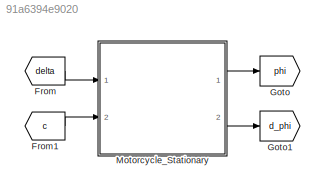
MODEL slx_91a6394e9020
KIND model
CONFIG AbsTol = auto
CONFIG EnableMultiTasking = off
CONFIG FixedStep = auto
CONFIG MaxStep = auto
CONFIG MinStep = auto
CONFIG RelTol = 1e-3
CONFIG SampleTimeConstraint = Unconstrained
CONFIG Solver = VariableStepAuto
CONFIG SolverName = VariableStepAuto
CONFIG StartTime = 0.0
CONFIG StopTime = 10.0
BLOCK [From] From
  GotoTag = delta
BLOCK [From] From1
  GotoTag = c
BLOCK [Goto] Goto
  GotoTag = phi
BLOCK [Goto] Goto1
  GotoTag = d_phi
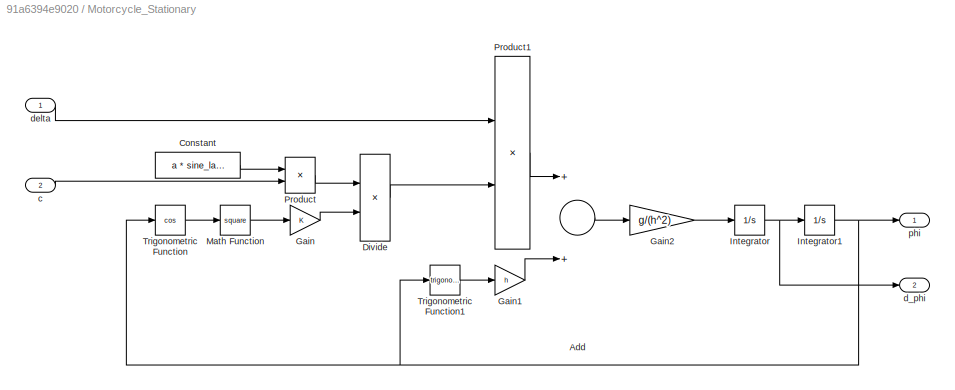
BLOCK [SubSystem] Motorcycle_Stationary
  Ports = [2, 2]
  RequestExecContextInheritance = off
BLOCK [Sum] Motorcycle_Stationary/Add
  InputSameDT = off
  OutDataTypeStr = Inherit: Inherit via internal rule
  Ports = [2, 1]
  SaturateOnIntegerOverflow = off
BLOCK [Constant] Motorcycle_Stationary/Constant
  Value = a * sine_lambda
BLOCK [Product] Motorcycle_Stationary/Divide
  InputSameDT = off
  Inputs = */
  OutDataTypeStr = Inherit: Inherit via internal rule
  Ports = [2, 1]
  RndMeth = Floor
  SaturateOnIntegerOverflow = off
BLOCK [Gain] Motorcycle_Stationary/Gain
  OutDataTypeStr = Inherit: Inherit via internal rule
  ParamDataTypeStr = Inherit: Inherit via internal rule
  SaturateOnIntegerOverflow = off
BLOCK [Gain] Motorcycle_Stationary/Gain1
  Gain = h
  OutDataTypeStr = Inherit: Inherit via internal rule
  ParamDataTypeStr = Inherit: Inherit via internal rule
  SaturateOnIntegerOverflow = off
BLOCK [Gain] Motorcycle_Stationary/Gain2
  Gain = g/(h^2)
  OutDataTypeStr = Inherit: Inherit via internal rule
  ParamDataTypeStr = Inherit: Inherit via internal rule
  SaturateOnIntegerOverflow = off
BLOCK [Integrator] Motorcycle_Stationary/Integrator
  Ports = [1, 1]
BLOCK [Integrator] Motorcycle_Stationary/Integrator1
  Ports = [1, 1]
BLOCK [Math] Motorcycle_Stationary/Math Function
  Operator = square
  Ports = [1, 1]
BLOCK [Product] Motorcycle_Stationary/Product
  InputSameDT = off
  OutDataTypeStr = Inherit: Inherit via internal rule
  Ports = [2, 1]
  RndMeth = Floor
  SaturateOnIntegerOverflow = off
BLOCK [Product] Motorcycle_Stationary/Product1
  InputSameDT = off
  OutDataTypeStr = Inherit: Inherit via internal rule
  Ports = [2, 1]
  RndMeth = Floor
  SaturateOnIntegerOverflow = off
BLOCK [Trigonometry] Motorcycle_Stationary/Trigonometric Function
  Operator = cos
  Ports = [1, 1]
BLOCK [Trigonometry] Motorcycle_Stationary/Trigonometric Function1
  Ports = [1, 1]
BLOCK [Inport] Motorcycle_Stationary/c
  IconDisplay = Port number
  Port = 2
BLOCK [Outport] Motorcycle_Stationary/d_phi
  IconDisplay = Port number
  Port = 2
BLOCK [Inport] Motorcycle_Stationary/delta
  IconDisplay = Port number
BLOCK [Outport] Motorcycle_Stationary/phi
  IconDisplay = Port number
LINE From1:1 -> Motorcycle_Stationary:2
LINE From:1 -> Motorcycle_Stationary:1
LINE Motorcycle_Stationary/Add:1 -> Motorcycle_Stationary/Gain2:1
LINE Motorcycle_Stationary/Constant:1 -> Motorcycle_Stationary/Product:1
LINE Motorcycle_Stationary/Divide:1 -> Motorcycle_Stationary/Product1:2
LINE Motorcycle_Stationary/Gain1:1 -> Motorcycle_Stationary/Add:2
LINE Motorcycle_Stationary/Gain2:1 -> Motorcycle_Stationary/Integrator:1
LINE Motorcycle_Stationary/Gain:1 -> Motorcycle_Stationary/Divide:2
NET Motorcycle_Stationary/Integrator1:1 -> Motorcycle_Stationary/Trigonometric Function1:1, Motorcycle_Stationary/Trigonometric Function:1, Motorcycle_Stationary/phi:1
NET Motorcycle_Stationary/Integrator:1 -> Motorcycle_Stationary/Integrator1:1, Motorcycle_Stationary/d_phi:1
LINE Motorcycle_Stationary/Math Function:1 -> Motorcycle_Stationary/Gain:1
LINE Motorcycle_Stationary/Product1:1 -> Motorcycle_Stationary/Add:1
LINE Motorcycle_Stationary/Product:1 -> Motorcycle_Stationary/Divide:1
LINE Motorcycle_Stationary/Trigonometric Function1:1 -> Motorcycle_Stationary/Gain1:1
LINE Motorcycle_Stationary/Trigonometric Function:1 -> Motorcycle_Stationary/Math Function:1
LINE Motorcycle_Stationary/c:1 -> Motorcycle_Stationary/Product:2
LINE Motorcycle_Stationary/delta:1 -> Motorcycle_Stationary/Product1:1
LINE Motorcycle_Stationary:1 -> Goto:1
LINE Motorcycle_Stationary:2 -> Goto1:1
note: NET lines group one-source signal fan-out (src -> all destinations, sorted); 1:1 wires keep LINE
